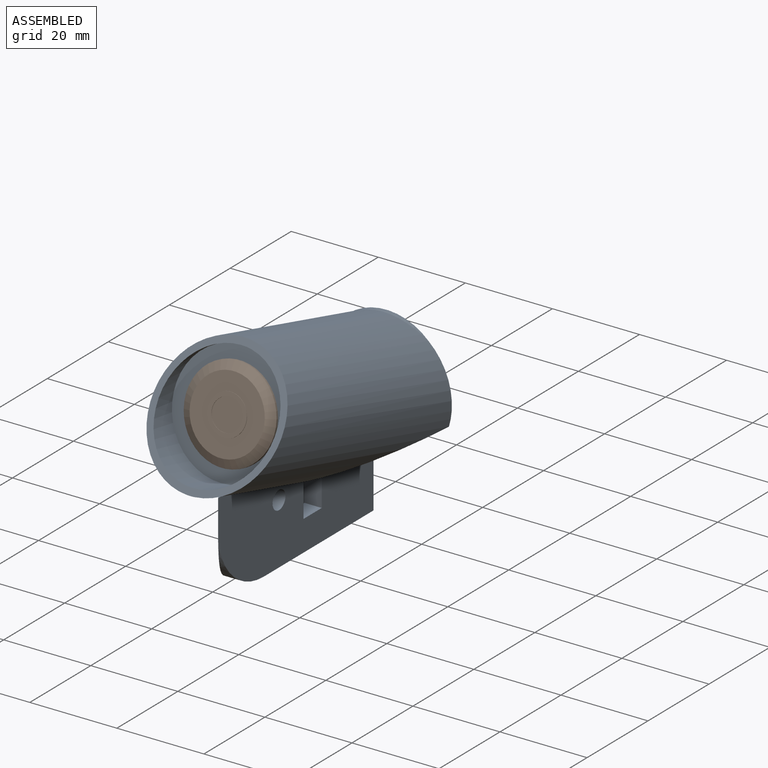
[diagram: assembled view]
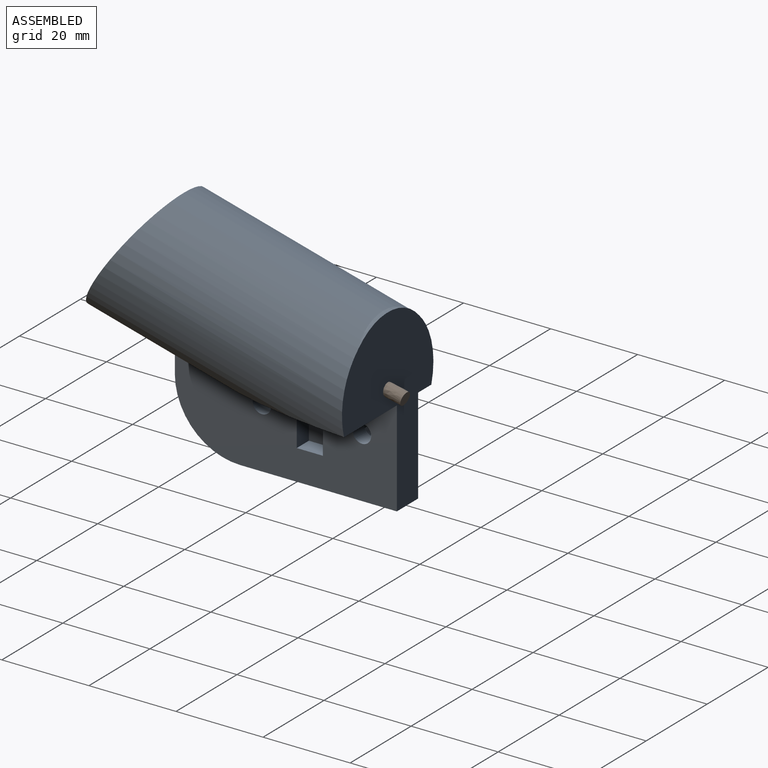
[diagram: assembled view, second angle]
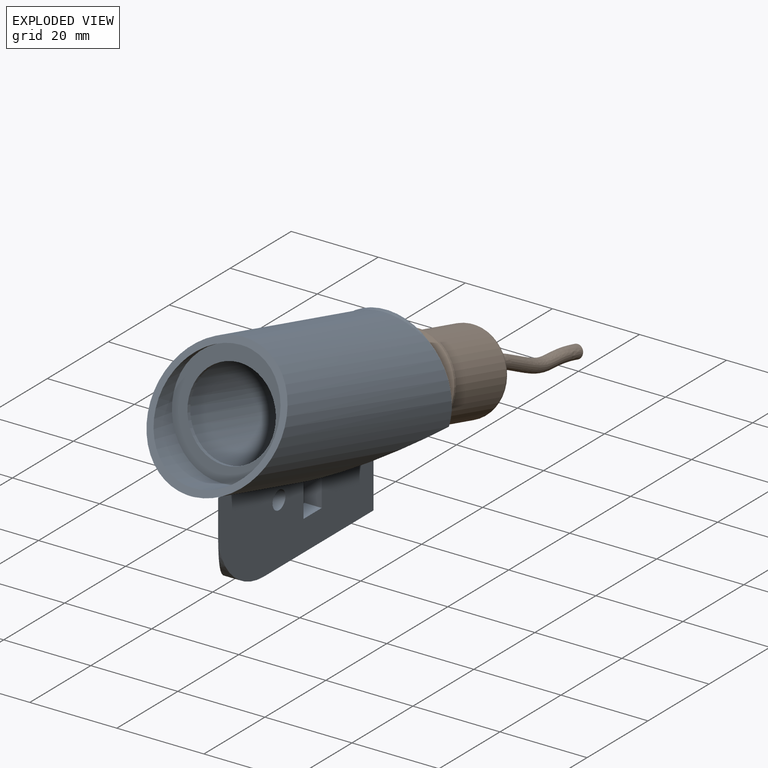
[diagram: exploded view]
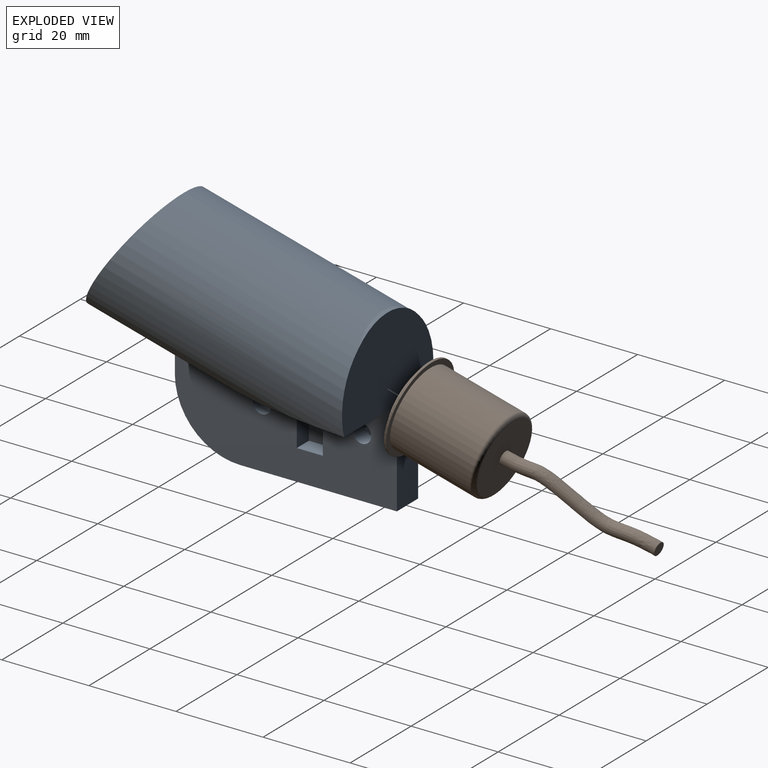
[diagram: exploded view, second angle]
ASSEMBLY  parts=2 mates=2
PART A: 46 faces, bbox 30x69.4x57.4 mm
  f0: cylinder r=15mm len=69.43mm, axis (0,-0.97,0.26), area 4374.5mm2, adj f2,f7,f8,f16,f18,f44,f45
  f1: cylinder r=13.5mm len=28.56mm, axis (0,0.97,-0.26), area 420.8mm2, adj f3,f45
  f2: plane 1.78x0.03mm, normal (0,-0.97,0.26), area 0mm2, adj f0,f45
  f3: plane 27x26.08mm, normal (0,-0.97,0.26), area 258.4mm2, adj f1,f20
  f4: cylinder r=12.5mm len=55.29mm, axis (0,-0.97,0.26), area 3286.8mm2, adj f5,f6,f7,f9,f15,f19,f21,f41
  f5: plane 11.42x1.25mm, normal (0.99,-0.11,0), area 7.7mm2, adj f4,f6,f42,f43
  f6: plane 24.08x11.42mm, normal (0,0,1), area 261.1mm2, adj f4,f5,f41,f42,f43
  f7: plane 40.64x17.31mm, normal (0,0,-1), area 378.6mm2, adj f0,f4,f14,f16,f42
  f8: plane 25.88x4.31mm, normal (0,0,-1), area 66.9mm2, adj f0,f16,f17
  f9: plane 9.28x6.64mm, normal (0,0,1), area 27.8mm2, adj f4,f14,f24,f25,f42
  f10: cylinder r=78.21mm len=22mm, axis (0,0,1), area 313.7mm2, adj f11,f14,f17,f18,f40
  f11: plane 36x7mm, normal (0,0,-1), area 252mm2, adj f10,f14,f16,f17,f40
  f12: cylinder r=2.1mm len=4.2mm, axis (1,0,0), area 48.8mm2, adj f14,f33
  f13: cylinder r=2.1mm len=4.2mm, axis (1,0,0), area 48.8mm2, adj f14,f26
  f14: plane 51x22mm, normal (1,0,0), area 956mm2, adj f7,f9,f10,f11,f12,f13,f15,f16
  f15: plane 6.56x3.88mm, normal (0,0,1), area 14.7mm2, adj f4,f14,f22
  f16: plane 42.47x30mm, normal (0,1,0), area 661.6mm2, adj f0,f7,f8,f11,f14,f17,f44
  f17: plane 35.82x22mm, normal (-1,0,0), area 698.2mm2, adj f8,f10,f11,f16,f18,f27,f28,f29
  f18: plane 25.12x7mm, normal (0,0,1), area 69.6mm2, adj f0,f10,f14,f17
  f19: plane 25x24.15mm, normal (0,0.97,-0.26), area 176.7mm2, adj f4,f20
  f20: cylinder r=10mm len=20mm, axis (0,0.97,-0.26), area 62.8mm2, adj f3,f19
  f21: plane 0.31x0.12mm, normal (0,0,-1), area 0mm2, adj f4,f22,f25
  f22: plane 15x4mm, normal (0,1,0), area 60mm2, adj f14,f15,f21,f23,f25
  f23: plane 6x4mm, normal (0,0,1), area 24mm2, adj f14,f22,f24,f25
  f24: plane 15x4mm, normal (0,-1,0), area 60mm2, adj f9,f14,f23,f25
  f25: plane 15x6mm, normal (1,0,0), area 90mm2, adj f9,f21,f22,f23,f24
  f26: plane 8.31x7.2mm, normal (-1,0,0), area 31mm2, adj f13,f27,f28,f29,f30,f31,f32
  f27: plane 3.6x3.3mm, normal (0,-0.5,0.87), area 13.7mm2, adj f17,f26,f28,f32
  f28: plane 3.6x3.3mm, normal (0,0.5,0.87), area 13.7mm2, adj f17,f26,f27,f29
  f29: plane 4.16x3.3mm, normal (0,1,0), area 13.7mm2, adj f17,f26,f28,f30
  f30: plane 3.6x3.3mm, normal (0,0.5,-0.87), area 13.7mm2, adj f17,f26,f29,f31
  f31: plane 3.6x3.3mm, normal (0,-0.5,-0.87), area 13.7mm2, adj f17,f26,f30,f32
  f32: plane 4.16x3.3mm, normal (0,-1,0), area 13.7mm2, adj f17,f26,f27,f31
  f33: plane 8.31x7.2mm, normal (-1,0,0), area 31mm2, adj f12,f34,f35,f36,f37,f38,f39
  f34: plane 3.6x3.3mm, normal (0,-0.5,0.87), area 13.7mm2, adj f17,f33,f35,f39
  f35: plane 3.6x3.3mm, normal (0,0.5,0.87), area 13.7mm2, adj f17,f33,f34,f36
  f36: plane 4.16x3.3mm, normal (0,1,0), area 13.7mm2, adj f17,f33,f35,f37
  f37: plane 3.6x3.3mm, normal (0,0.5,-0.87), area 13.7mm2, adj f17,f33,f36,f38
  f38: plane 3.6x3.3mm, normal (0,-0.5,-0.87), area 13.7mm2, adj f17,f33,f37,f39
  f39: plane 4.16x3.3mm, normal (0,-1,0), area 13.7mm2, adj f17,f33,f34,f38
  f40: cylinder r=15mm len=15mm, axis (1,0,0), area 65.7mm2, adj f10,f11,f14
  f41: plane 10.22x1.14mm, normal (-0.99,-0.11,0), area 2.2mm2, adj f4,f6,f42
  f42: plane 21.63x2.01mm, normal (0,-1,0), area 41.3mm2, adj f4,f5,f6,f7,f9,f41
  f43: plane 25x16.69mm, normal (0,-1,0), area 332.8mm2, adj f4,f5,f6
  f44: cylinder r=13.88mm len=20.01mm, axis (0,1,0), area 18.2mm2, adj f0,f16
  f45: plane 30x26.34mm, normal (0,-0.83,0.55), area 141.7mm2, adj f0,f1,f2
PART B: 13 faces, bbox 21x21x58.4 mm
  f0: cylinder r=9.25mm len=19mm, axis (0,0,-1), area 1104.3mm2, adj f4,f12
  f1: plane 16.5x16.5mm, normal (0,0,1), area 206.8mm2, adj f11,f12
  f2: cylinder r=10.5mm len=21mm, axis (0,0,1), area 33mm2, adj f4,f5
  f3: plane 17x17mm, normal (0,0,-1), area 163.4mm2, adj f5,f7
  f4: plane 21x21mm, normal (0,0,1), area 77.6mm2, adj f0,f2
  f5: cone r=8.5mm half-angle=63.4deg, axis (0,0,1), area 133.5mm2, adj f2,f3
  f6: cylinder r=3.5mm len=7mm, axis (0,0,1), area 2.2mm2, adj f8,f9
  f7: cylinder r=4.5mm len=9mm, axis (0,0,1), area 2.8mm2, adj f3,f8
  f8: plane 9x9mm, normal (0,0,-1), area 25.1mm2, adj f6,f7
  f9: plane 7x7mm, normal (0,0,-1), area 38.5mm2, adj f6
  f10: plane 3x3mm, normal (0,0,1), area 7.1mm2, adj f11
  f11: bspline ~36.78x8.41mm, area 350.1mm2, adj f1,f10
  f12: torus R=8.25mm, axis (0,0,1), area 87.7mm2, adj f0,f1
PLACE A t=(-14.33,-15.32,0.78)mm fixed
PLACE B rot(axis=(-1,0,0),105deg) t=(-11.33,-66.17,19.04)mm
MATE planar B.f2 <-> A.f0  axis (0,0.97,-0.26) through (-11.33,-66.17,19.04)mm
MATE cylindrical B.f0 <-> A.f0  axis (0,-0.97,0.26) through (-11.33,-56.99,16.58)mm
